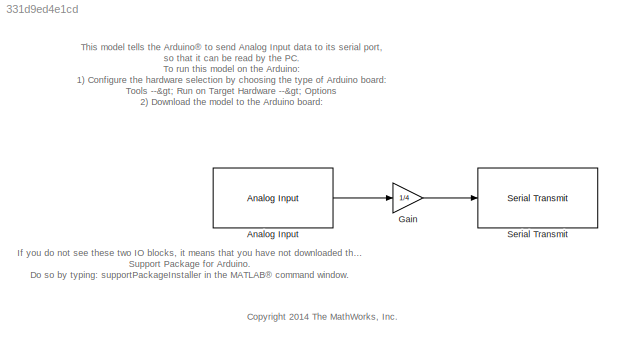
MODEL slx_331d9ed4e1cd
KIND model
CONFIG AbsTol = auto
CONFIG EnableMultiTasking = on
CONFIG FixedStep = auto
CONFIG MaxStep = auto
CONFIG MinStep = auto
CONFIG RelTol = 1e-3
CONFIG SampleTimeConstraint = Unconstrained
CONFIG Solver = ode45
CONFIG SolverName = ode45
CONFIG StartTime = 0.0
CONFIG StopTime = 10.0
BLOCK [Reference] Analog Input  REF=arduinolib/Analog Input
  Ports = [0, 1]
  SourceBlock = arduinolib/Analog Input
  SourceProductBaseCode = ARDUINO
  SourceProductName = Simulink Support Package for Arduino Hardware
  SourceType = Arduino Analog Input
BLOCK [Gain] Gain
  Gain = 1/4
  OutDataTypeStr = uint8
  ParamDataTypeStr = Inherit: Inherit via internal rule
  SaturateOnIntegerOverflow = off
BLOCK [Reference] Serial Transmit  REF=arduinolib/Serial Transmit
  Ports = [1]
  SourceBlock = arduinolib/Serial Transmit
  SourceProductBaseCode = ARDUINO
  SourceProductName = Simulink Support Package for Arduino Hardware
  SourceType = Arduino Serial Transmit
ANNOTATION (root): If you do not see these two IO blocks, it means that you have not downloaded the Simulink ® Support Package for Arduino. Do so by typing: supportPackageInstaller in the MATLAB ® command window.
ANNOTATION (root): This model tells the Arduino ® to send Analog Input data to its serial port, so that it can be read by the PC. To run this model on the Arduino : 1) Configure the hardware selection by choosing the type of Arduino board: Tools --> Run on Target Hardware --> Options 2) Download the model to the Arduino board: --> Deploy to Hardware (or Ctrl + B)
ANNOTATION (root): <copyright redacted>
LINE Analog Input:1 -> Gain:1
LINE Gain:1 -> Serial Transmit:1
